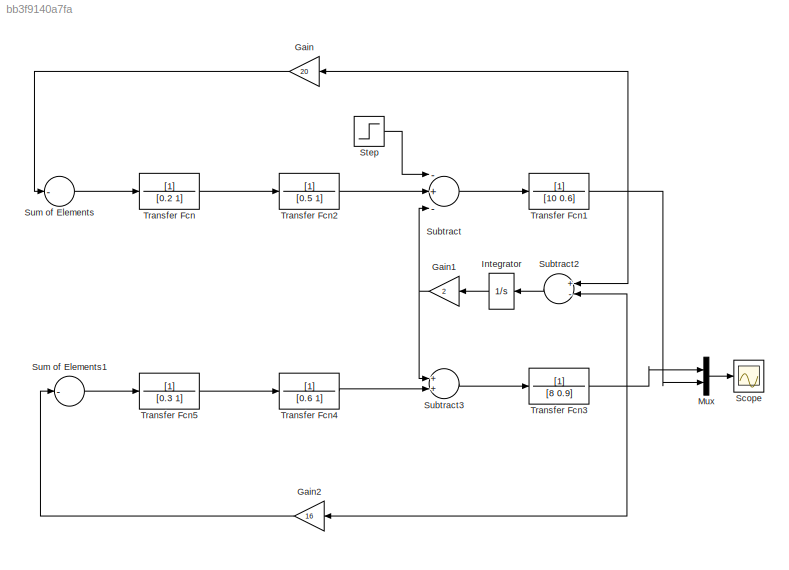
MODEL slx_bb3f9140a7fa
KIND model
CONFIG AbsTol = auto
CONFIG FixedStep = auto
CONFIG MaxStep = auto
CONFIG MinStep = auto
CONFIG RelTol = 1e-3
CONFIG SampleTimeConstraint = Unconstrained
CONFIG Solver = ode45
CONFIG SolverMode = Auto
CONFIG SolverName = ode45
CONFIG StartTime = 0.0
CONFIG StopTime = 25
BLOCK [Gain] Gain
  Gain = 20
  OutDataTypeStr = Inherit: Inherit via internal rule
  ParamDataTypeStr = Inherit: Inherit via internal rule
  SaturateOnIntegerOverflow = off
BLOCK [Gain] Gain1
  Gain = 2
  OutDataTypeStr = Inherit: Inherit via internal rule
  ParamDataTypeStr = Inherit: Inherit via internal rule
  SaturateOnIntegerOverflow = off
BLOCK [Gain] Gain2
  Gain = 16
  OutDataTypeStr = Inherit: Inherit via internal rule
  ParamDataTypeStr = Inherit: Inherit via internal rule
  SaturateOnIntegerOverflow = off
BLOCK [Integrator] Integrator
  Ports = [1, 1]
BLOCK [Mux] Mux
  DisplayOption = bar
  Inputs = 2
  Ports = [2, 1]
BLOCK [Scope] Scope
  Floating = off
  NumInputPorts = 1
  Ports = [1]
BLOCK [Step] Step
  SampleTime = 0
BLOCK [Sum] Subtract
  InputSameDT = off
  Inputs = -+-
  OutDataTypeStr = Inherit: Inherit via internal rule
  Ports = [3, 1]
  SaturateOnIntegerOverflow = off
BLOCK [Sum] Subtract2
  InputSameDT = off
  Inputs = +-
  OutDataTypeStr = Inherit: Inherit via internal rule
  Ports = [2, 1]
  SaturateOnIntegerOverflow = off
BLOCK [Sum] Subtract3
  InputSameDT = off
  OutDataTypeStr = Inherit: Inherit via internal rule
  Ports = [2, 1]
  SaturateOnIntegerOverflow = off
BLOCK [Sum] Sum of Elements
  InputSameDT = off
  Inputs = -
  OutDataTypeStr = Inherit: Inherit via internal rule
  Ports = [1, 1]
  SaturateOnIntegerOverflow = off
BLOCK [Sum] Sum of Elements1
  InputSameDT = off
  Inputs = -
  OutDataTypeStr = Inherit: Inherit via internal rule
  Ports = [1, 1]
  SaturateOnIntegerOverflow = off
BLOCK [TransferFcn] Transfer Fcn
  Denominator = [0.2 1]
BLOCK [TransferFcn] Transfer Fcn1
  Denominator = [10 0.6]
BLOCK [TransferFcn] Transfer Fcn2
  Denominator = [0.5 1]
BLOCK [TransferFcn] Transfer Fcn3
  Denominator = [8 0.9]
BLOCK [TransferFcn] Transfer Fcn4
  Denominator = [0.6 1]
BLOCK [TransferFcn] Transfer Fcn5
  Denominator = [0.3 1]
NET Gain1:1 -> Subtract3:1, Subtract:3
LINE Gain2:1 -> Sum of Elements1:1
LINE Gain:1 -> Sum of Elements:1
LINE Integrator:1 -> Gain1:1
LINE Mux:1 -> Scope:1
LINE Step:1 -> Subtract:1
LINE Subtract2:1 -> Integrator:1
LINE Subtract3:1 -> Transfer Fcn3:1
LINE Subtract:1 -> Transfer Fcn1:1
LINE Sum of Elements1:1 -> Transfer Fcn5:1
LINE Sum of Elements:1 -> Transfer Fcn:1
NET Transfer Fcn1:1 -> Gain:1, Mux:2, Subtract2:1
LINE Transfer Fcn2:1 -> Subtract:2
NET Transfer Fcn3:1 -> Gain2:1, Mux:1, Subtract2:2
LINE Transfer Fcn4:1 -> Subtract3:2
LINE Transfer Fcn5:1 -> Transfer Fcn4:1
LINE Transfer Fcn:1 -> Transfer Fcn2:1
note: NET lines group one-source signal fan-out (src -> all destinations, sorted); 1:1 wires keep LINE
